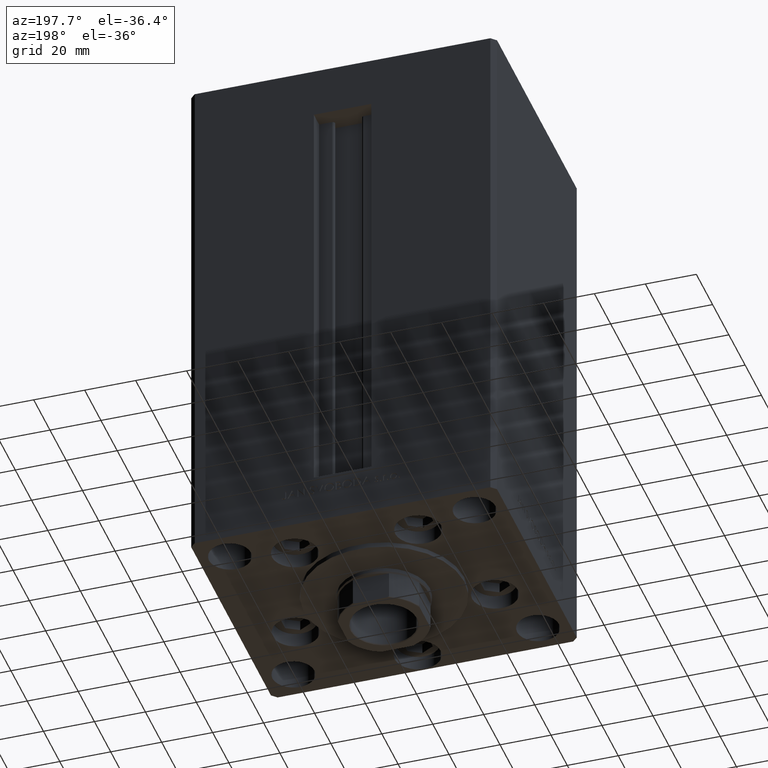
[diagram: clean part render]
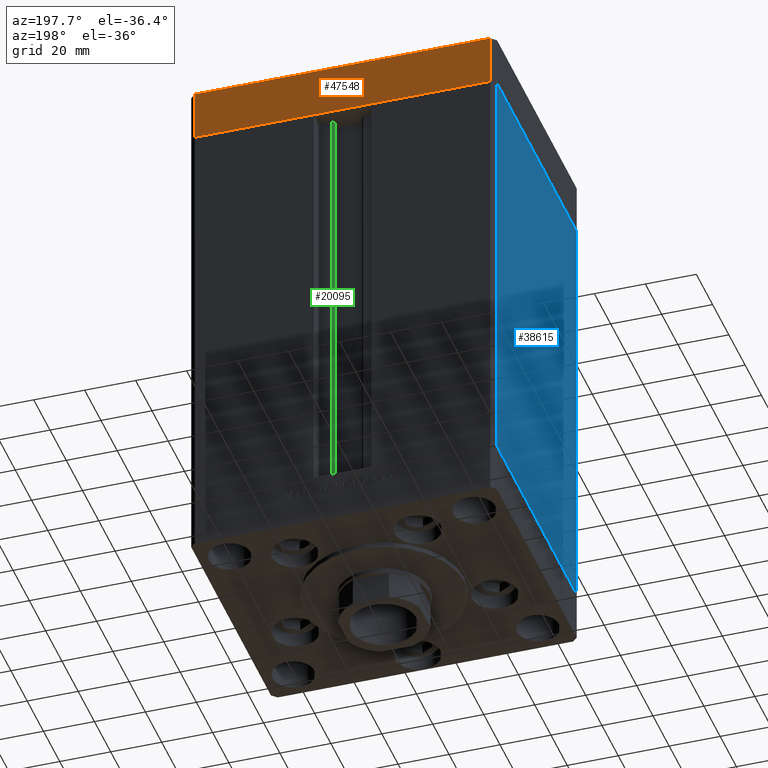
[diagram: same view with three faces highlighted in distinct colors, each labeled with its STEP entity id]
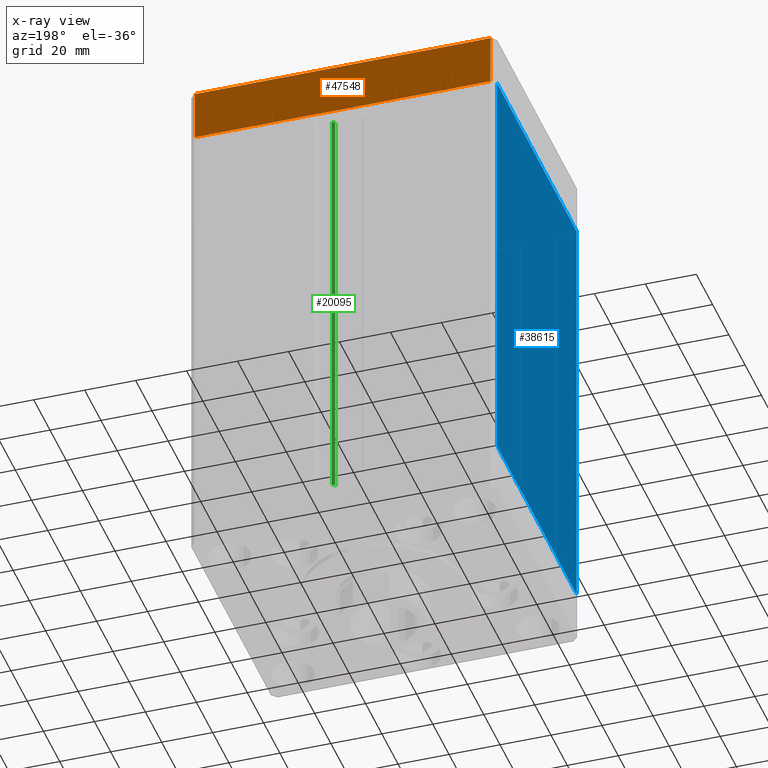
[diagram: x-ray of the same camera — body ghosted, the three highlighted faces saturated]
A machine part, auxiliary view with three faces highlighted in distinct colors.
The next image is the same camera in x-ray (body ghosted, the three faces saturated) — at least one of them is partly hidden behind the body in this view.
Their STEP definitions:

[orange] entity #47548 — the highlighted planar face has unit normal (-0, 1, 0).
#37 = LINE ( 'NONE', #29144, #34183 ) ;
#319 = ORIENTED_EDGE ( 'NONE', *, *, #39137, .F. ) ;
#3789 = CARTESIAN_POINT ( 'NONE',  ( 57.99999999999993605, 51.00000000000000711, 0.000000000000000000 ) ) ;
#6874 = VECTOR ( 'NONE', #7790, 1000.000000000000000 ) ;
#6912 = LINE ( 'NONE', #44719, #30658 ) ;
#7474 = VERTEX_POINT ( 'NONE', #44102 ) ;
#7790 = DIRECTION ( 'NONE',  ( -1.000000000000000000, -2.392722035830079958E-16, 0.000000000000000000 ) ) ;
#9076 = CARTESIAN_POINT ( 'NONE',  ( -57.99999999999999289, 50.99999999999997868, 0.000000000000000000 ) ) ;
#9771 = CARTESIAN_POINT ( 'NONE',  ( 57.99999999999993605, 51.00000000000000711, 0.000000000000000000 ) ) ;
#13615 = VERTEX_POINT ( 'NONE', #16130 ) ;
#15354 = DIRECTION ( 'NONE',  ( 0.000000000000000000, 0.000000000000000000, 1.000000000000000000 ) ) ;
#16130 = CARTESIAN_POINT ( 'NONE',  ( -57.99999999999999289, 50.99999999999997868, -20.00000000000000000 ) ) ;
#16316 = EDGE_CURVE ( 'NONE', #7474, #21866, #37, .T. ) ;
#17751 = CARTESIAN_POINT ( 'NONE',  ( 57.99999999999993605, 51.00000000000000711, -20.00000000000000000 ) ) ;
#19369 = VERTEX_POINT ( 'NONE', #9076 ) ;
#21866 = VERTEX_POINT ( 'NONE', #3789 ) ;
#22147 = ORIENTED_EDGE ( 'NONE', *, *, #16316, .F. ) ;
#23303 = ORIENTED_EDGE ( 'NONE', *, *, #27677, .T. ) ;
#25208 = FACE_OUTER_BOUND ( 'NONE', #31039, .T. ) ;
#27677 = EDGE_CURVE ( 'NONE', #13615, #19369, #6912, .T. ) ;
#28992 = EDGE_CURVE ( 'NONE', #7474, #13615, #45586, .T. ) ;
#29144 = CARTESIAN_POINT ( 'NONE',  ( 57.99999999999993605, 51.00000000000000711, -20.00000000000000000 ) ) ;
#29195 = DIRECTION ( 'NONE',  ( -2.392722035830079958E-16, 1.000000000000000000, 0.000000000000000000 ) ) ;
#30658 = VECTOR ( 'NONE', #15354, 1000.000000000000000 ) ;
#31039 = EDGE_LOOP ( 'NONE', ( #319, #22147, #48832, #23303 ) ) ;
#32648 = DIRECTION ( 'NONE',  ( -1.000000000000000000, -2.392722035830079958E-16, 0.000000000000000000 ) ) ;
#33374 = LINE ( 'NONE', #9771, #49178 ) ;
#34183 = VECTOR ( 'NONE', #37582, 1000.000000000000000 ) ;
#37582 = DIRECTION ( 'NONE',  ( 0.000000000000000000, 0.000000000000000000, 1.000000000000000000 ) ) ;
#37882 = CARTESIAN_POINT ( 'NONE',  ( 57.99999999999993605, 51.00000000000000711, -20.00000000000000000 ) ) ;
#39137 = EDGE_CURVE ( 'NONE', #21866, #19369, #33374, .T. ) ;
#40383 = PLANE ( 'NONE',  #42173 ) ;
#42173 = AXIS2_PLACEMENT_3D ( 'NONE', #17751, #29195, #44350 ) ;
#44102 = CARTESIAN_POINT ( 'NONE',  ( 57.99999999999993605, 51.00000000000000711, -20.00000000000000000 ) ) ;
#44350 = DIRECTION ( 'NONE',  ( -1.000000000000000000, -2.392722035830079958E-16, 0.000000000000000000 ) ) ;
#44719 = CARTESIAN_POINT ( 'NONE',  ( -57.99999999999999289, 50.99999999999997868, -20.00000000000000000 ) ) ;
#45586 = LINE ( 'NONE', #37882, #6874 ) ;
#47548 = ADVANCED_FACE ( 'NONE', ( #25208 ), #40383, .T. ) ;
#48832 = ORIENTED_EDGE ( 'NONE', *, *, #28992, .T. ) ;
#49178 = VECTOR ( 'NONE', #32648, 1000.000000000000000 ) ;

[blue] entity #38615 — the highlighted planar face has unit normal (1, 0, 0).
#1163 = EDGE_LOOP ( 'NONE', ( #16201, #38327, #26632, #16913 ) ) ;
#1432 = CARTESIAN_POINT ( 'NONE',  ( -60.00000000000001421, 49.00000000000000000, 168.5000000000000000 ) ) ;
#5472 = VERTEX_POINT ( 'NONE', #48004 ) ;
#7355 = EDGE_CURVE ( 'NONE', #11426, #16359, #23234, .T. ) ;
#9977 = PLANE ( 'NONE',  #21353 ) ;
#10955 = FACE_OUTER_BOUND ( 'NONE', #1163, .T. ) ;
#11426 = VERTEX_POINT ( 'NONE', #17228 ) ;
#13607 = LINE ( 'NONE', #1432, #42699 ) ;
#15744 = VECTOR ( 'NONE', #46110, 1000.000000000000000 ) ;
#16201 = ORIENTED_EDGE ( 'NONE', *, *, #31947, .T. ) ;
#16359 = VERTEX_POINT ( 'NONE', #48768 ) ;
#16913 = ORIENTED_EDGE ( 'NONE', *, *, #35649, .T. ) ;
#17228 = CARTESIAN_POINT ( 'NONE',  ( -60.00000000000001421, 49.00000000000000000, 168.5000000000000000 ) ) ;
#17591 = DIRECTION ( 'NONE',  ( -0.000000000000000000, -0.000000000000000000, -1.000000000000000000 ) ) ;
#20534 = CARTESIAN_POINT ( 'NONE',  ( -59.99999999999998579, -49.00000000000000000, 0.000000000000000000 ) ) ;
#21353 = AXIS2_PLACEMENT_3D ( 'NONE', #21889, #29851, #48253 ) ;
#21889 = CARTESIAN_POINT ( 'NONE',  ( -60.00000000000001421, 49.00000000000000000, 168.5000000000000000 ) ) ;
#23234 = LINE ( 'NONE', #45864, #15744 ) ;
#26632 = ORIENTED_EDGE ( 'NONE', *, *, #7355, .F. ) ;
#29834 = DIRECTION ( 'NONE',  ( -0.000000000000000000, -0.000000000000000000, -1.000000000000000000 ) ) ;
#29851 = DIRECTION ( 'NONE',  ( 1.000000000000000000, 2.832201593431521726E-16, -0.000000000000000000 ) ) ;
#30762 = VECTOR ( 'NONE', #29834, 1000.000000000000000 ) ;
#31947 = EDGE_CURVE ( 'NONE', #5472, #40971, #40248, .T. ) ;
#33529 = CARTESIAN_POINT ( 'NONE',  ( -60.00000000000001421, 49.00000000000000000, 0.000000000000000000 ) ) ;
#35459 = EDGE_CURVE ( 'NONE', #16359, #40971, #36806, .T. ) ;
#35649 = EDGE_CURVE ( 'NONE', #11426, #5472, #13607, .T. ) ;
#36806 = LINE ( 'NONE', #44998, #30762 ) ;
#38327 = ORIENTED_EDGE ( 'NONE', *, *, #35459, .F. ) ;
#38615 = ADVANCED_FACE ( 'NONE', ( #10955 ), #9977, .F. ) ;
#40248 = LINE ( 'NONE', #33529, #45885 ) ;
#40971 = VERTEX_POINT ( 'NONE', #20534 ) ;
#42699 = VECTOR ( 'NONE', #17591, 1000.000000000000000 ) ;
#44998 = CARTESIAN_POINT ( 'NONE',  ( -59.99999999999998579, -49.00000000000000000, 168.5000000000000000 ) ) ;
#45864 = CARTESIAN_POINT ( 'NONE',  ( -60.00000000000001421, 49.00000000000000000, 168.5000000000000000 ) ) ;
#45885 = VECTOR ( 'NONE', #46357, 1000.000000000000000 ) ;
#46110 = DIRECTION ( 'NONE',  ( 2.832201593431521726E-16, -1.000000000000000000, 0.000000000000000000 ) ) ;
#46357 = DIRECTION ( 'NONE',  ( 2.832201593431521726E-16, -1.000000000000000000, 0.000000000000000000 ) ) ;
#48004 = CARTESIAN_POINT ( 'NONE',  ( -60.00000000000001421, 49.00000000000000000, 0.000000000000000000 ) ) ;
#48253 = DIRECTION ( 'NONE',  ( -2.832201593431521726E-16, 1.000000000000000000, 0.000000000000000000 ) ) ;
#48768 = CARTESIAN_POINT ( 'NONE',  ( -59.99999999999998579, -49.00000000000000000, 168.5000000000000000 ) ) ;

[green] entity #20095 — the highlighted cylindrical surface (edge-blend (fillet) strip) has radius 0.9333 mm, axis along (0, 0, 1).
#976 = VERTEX_POINT ( 'NONE', #34499 ) ;
#1771 = CARTESIAN_POINT ( 'NONE',  ( 6.183333333334001480, 44.50000000000000000, 0.000000000000000000 ) ) ;
#3449 = AXIS2_PLACEMENT_3D ( 'NONE', #11366, #14588, #26528 ) ;
#3939 = EDGE_CURVE ( 'NONE', #9343, #36860, #27539, .T. ) ;
#4255 = ORIENTED_EDGE ( 'NONE', *, *, #3939, .T. ) ;
#5186 = VECTOR ( 'NONE', #15035, 1000.000000000000000 ) ;
#6648 = CARTESIAN_POINT ( 'NONE',  ( 6.183333333334001480, 44.50000000000000000, 168.5000000000000000 ) ) ;
#7578 = LINE ( 'NONE', #26486, #5186 ) ;
#8060 = CARTESIAN_POINT ( 'NONE',  ( 6.183333333334001480, 43.56666666666598786, 168.5000000000000000 ) ) ;
#9343 = VERTEX_POINT ( 'NONE', #35411 ) ;
#11366 = CARTESIAN_POINT ( 'NONE',  ( 6.183333333334001480, 43.56666666666598786, 0.000000000000000000 ) ) ;
#11760 = ORIENTED_EDGE ( 'NONE', *, *, #18256, .F. ) ;
#14588 = DIRECTION ( 'NONE',  ( -0.000000000000000000, -0.000000000000000000, 1.000000000000000000 ) ) ;
#14792 = CARTESIAN_POINT ( 'NONE',  ( 5.375042956467942723, 43.09999999999898534, 0.000000000000000000 ) ) ;
#15035 = DIRECTION ( 'NONE',  ( -0.000000000000000000, -0.000000000000000000, 1.000000000000000000 ) ) ;
#16229 = DIRECTION ( 'NONE',  ( 1.000000000000000000, 0.000000000000000000, 0.000000000000000000 ) ) ;
#18256 = EDGE_CURVE ( 'NONE', #27225, #976, #30255, .T. ) ;
#18807 = CYLINDRICAL_SURFACE ( 'NONE', #3449, 0.9333333333340068094 ) ;
#20095 = ADVANCED_FACE ( 'NONE', ( #48662 ), #18807, .T. ) ;
#21811 = EDGE_LOOP ( 'NONE', ( #28435, #11760, #48240, #4255 ) ) ;
#21876 = DIRECTION ( 'NONE',  ( -0.000000000000000000, -0.000000000000000000, -1.000000000000000000 ) ) ;
#23455 = DIRECTION ( 'NONE',  ( 0.000000000000000000, 0.000000000000000000, -1.000000000000000000 ) ) ;
#23561 = AXIS2_PLACEMENT_3D ( 'NONE', #8060, #23455, #16229 ) ;
#26486 = CARTESIAN_POINT ( 'NONE',  ( 5.375042956467942723, 43.09999999999898534, 0.000000000000000000 ) ) ;
#26528 = DIRECTION ( 'NONE',  ( 1.000000000000000000, 0.000000000000000000, 0.000000000000000000 ) ) ;
#27175 = EDGE_CURVE ( 'NONE', #27225, #9343, #7578, .T. ) ;
#27225 = VERTEX_POINT ( 'NONE', #14792 ) ;
#27539 = CIRCLE ( 'NONE', #23561, 0.9333333333340068094 ) ;
#28435 = ORIENTED_EDGE ( 'NONE', *, *, #41990, .F. ) ;
#28882 = LINE ( 'NONE', #1771, #36585 ) ;
#30255 = CIRCLE ( 'NONE', #37426, 0.9333333333340068094 ) ;
#34499 = CARTESIAN_POINT ( 'NONE',  ( 6.183333333334001480, 44.50000000000000000, 0.000000000000000000 ) ) ;
#35411 = CARTESIAN_POINT ( 'NONE',  ( 5.375042956467941835, 43.09999999999898534, 168.5000000000000000 ) ) ;
#36585 = VECTOR ( 'NONE', #47008, 1000.000000000000000 ) ;
#36860 = VERTEX_POINT ( 'NONE', #6648 ) ;
#37426 = AXIS2_PLACEMENT_3D ( 'NONE', #40541, #21876, #48241 ) ;
#40541 = CARTESIAN_POINT ( 'NONE',  ( 6.183333333334001480, 43.56666666666598786, 0.000000000000000000 ) ) ;
#41990 = EDGE_CURVE ( 'NONE', #976, #36860, #28882, .T. ) ;
#47008 = DIRECTION ( 'NONE',  ( -0.000000000000000000, -0.000000000000000000, 1.000000000000000000 ) ) ;
#48240 = ORIENTED_EDGE ( 'NONE', *, *, #27175, .T. ) ;
#48241 = DIRECTION ( 'NONE',  ( 1.000000000000000000, 0.000000000000000000, 0.000000000000000000 ) ) ;
#48662 = FACE_OUTER_BOUND ( 'NONE', #21811, .T. ) ;